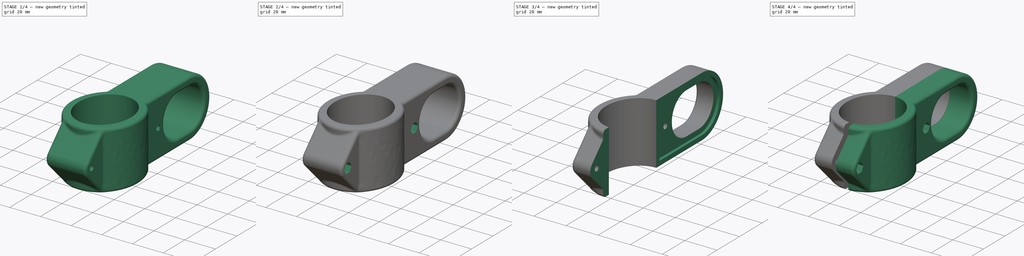
[diagram: build sequence overview — one tinted view per stage of 4, left to right]
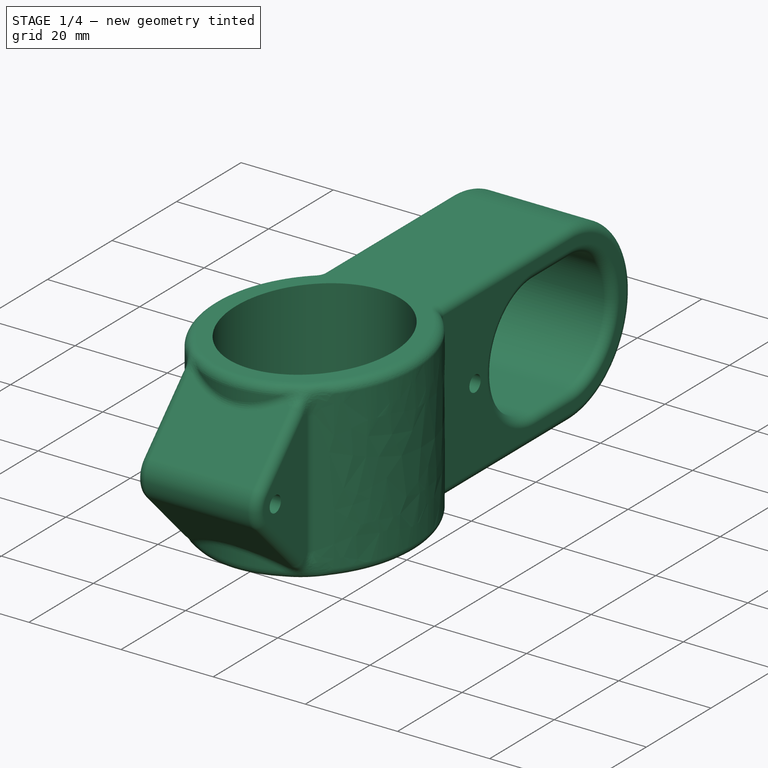
[diagram: stage 1 of 4 — iso view after this stage's code; geometry added in this stage tinted green]
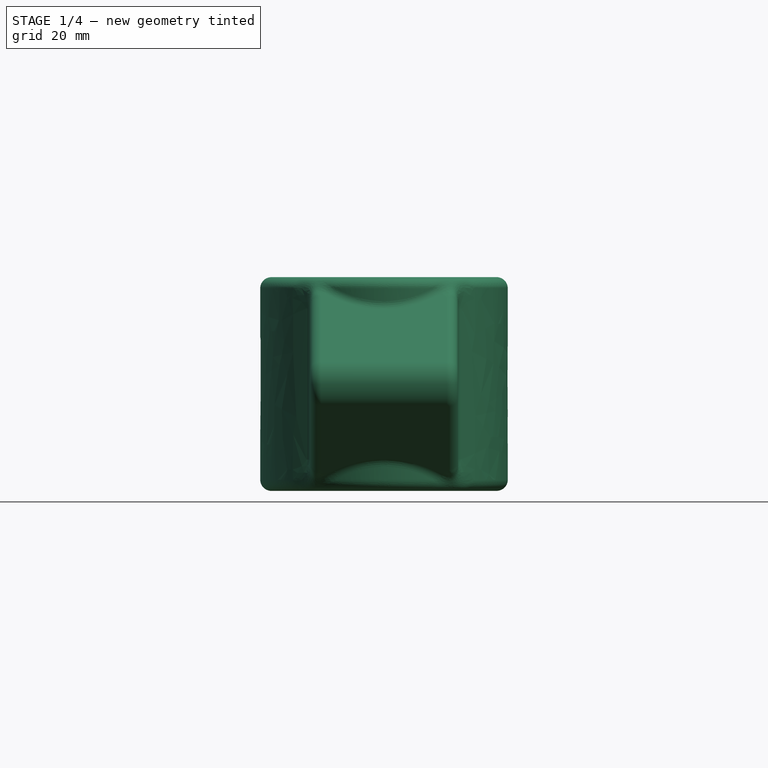
[diagram: stage 1 of 4 — front view after this stage's code; geometry added in this stage tinted green]
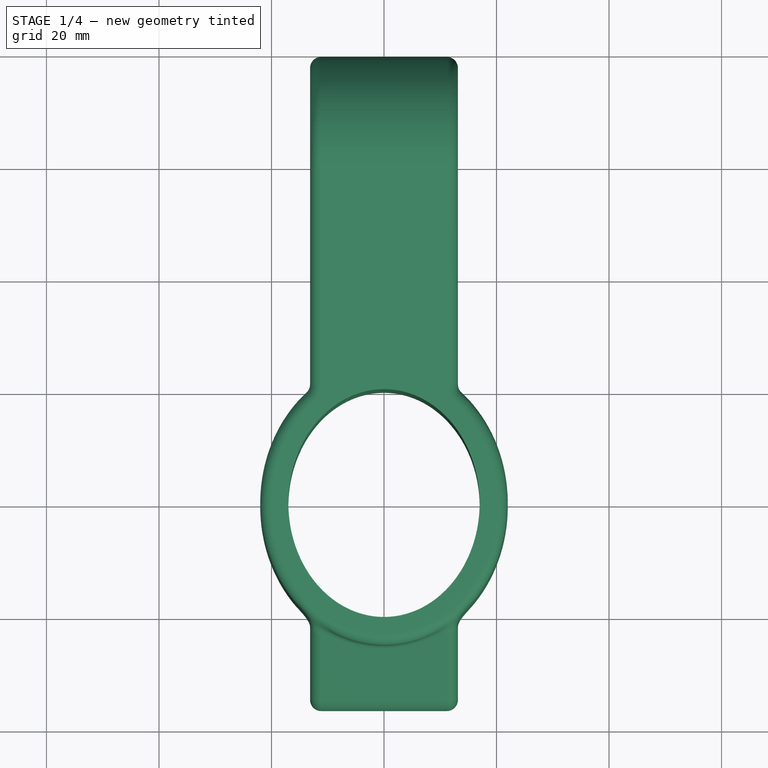
[diagram: stage 1 of 4 — top view after this stage's code; geometry added in this stage tinted green]
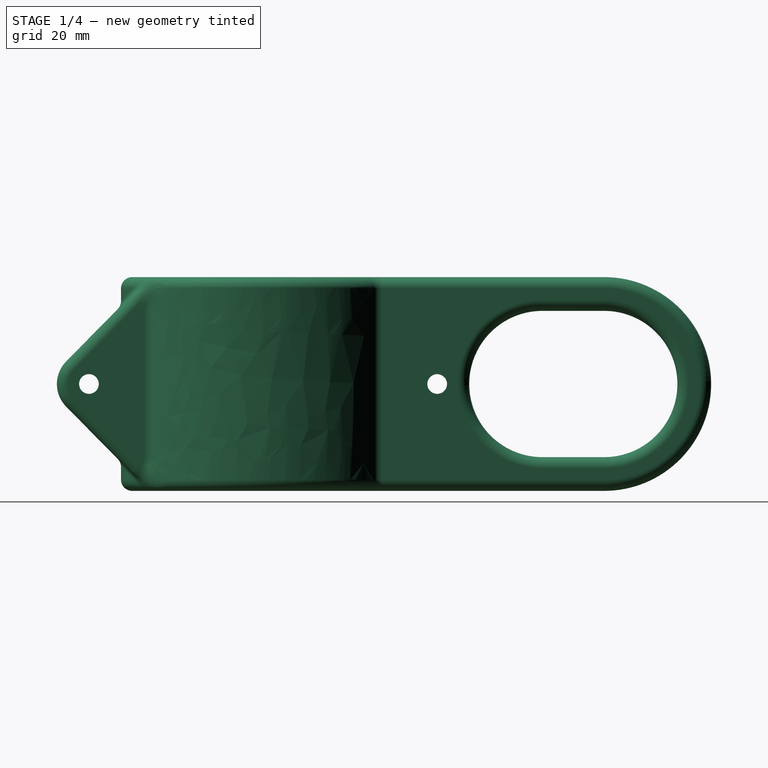
[diagram: stage 1 of 4 — right view after this stage's code; geometry added in this stage tinted green]
FCSTD DOCUMENT  (FreeCAD 0.18.4R)
Label: ScooterLocker
License: All rights reserved
LicenseURL: http://en.wikipedia.org/wiki/All_rights_reserved
objects: Sketcher::SketchObject×10, PartDesign::Pocket×6, PartDesign::ShapeBinder×6, PartDesign::Body×3, PartDesign::Pad×2, PartDesign::Plane×2, PartDesign::FeatureBase×2, Spreadsheet::Sheet×1, PartDesign::Fillet×1, App::Part×1
note: 40 computed .brp shape members not serialized (recipe doc carries the construction recipe); baked Part::Feature solids carry a one-line shape summary decoded from their .brp

FEATURE [Sketcher::SketchObject] Sketch  label="TEMPLATE_XY"
  MapMode = 5
  Support = -> [XY_Plane001]
  sketch-geometry (13):
    g0: Ellipse CenterX=0 CenterY=0 CenterZ=0 NormalX=0 NormalY=0 NormalZ=1 MajorRadius=20.25 MinorRadius=17 AngleXU=-1.5708
    g1: LineSegment StartX=0 StartY=-20.25 StartZ=0 EndX=0 EndY=20.25 EndZ=0
    g2: LineSegment StartX=17 StartY=0 StartZ=0 EndX=-17 EndY=0 EndZ=0
    g3: GeomPoint X=0 Y=-11.0028 Z=0
    g4: GeomPoint X=0 Y=11.0028 Z=0
    g5: Ellipse CenterX=0 CenterY=0 CenterZ=0 NormalX=0 NormalY=0 NormalZ=1 MajorRadius=25.25 MinorRadius=22 AngleXU=-1.5708
    g6: LineSegment StartX=0 StartY=-25.25 StartZ=0 EndX=0 EndY=25.25 EndZ=0
    g7: LineSegment StartX=22 StartY=0 StartZ=0 EndX=-22 EndY=0 EndZ=0
    g8: GeomPoint X=0 Y=-12.392 Z=0
    g9: GeomPoint X=0 Y=12.392 Z=0
    g10: LineSegment [constr] StartX=0 StartY=20.25 StartZ=0 EndX=0 EndY=25.25 EndZ=0
    g11: LineSegment [constr] StartX=-22 StartY=0 StartZ=0 EndX=-17 EndY=0 EndZ=0
    g12: LineSegment StartX=-13.1417 StartY=20.25 StartZ=0 EndX=13.1417 EndY=20.25 EndZ=0
  constraints (21):
    c: InternalAlignment(g1-g4 -> g0) x4
    c: Vertical(g1)
    c: DistanceX(g2,g2) = 34
    c: DistanceY(g1,g1) = 40.5
    c: InternalAlignment(g6-g9 -> g5) x4
    c: Vertical(g6)
    c: Coincident(g5,g0)
    c: Coincident(g10,g1)
    c: Coincident(g10,g6)
    c: DistanceY(g10,g10) = 5  'Thickness'
    c: Coincident(g11,g7)
    c: Coincident(g11,g2)
    c: Equal(g10,g11)
    c: Coincident(g0,g-1)
    c: DistanceX(g7,g7) = 44  'R1'
    c: DistanceY(g6,g6) = 50.5  'R2'
    c: PointOnObject(g12,g5)
    c: PointOnObject(g12,g5)
    c: Horizontal(g12)
    c: Tangent(g0,g12)
    c: DistanceX(g12,g12) = 26.2834  'LockWidth'
FEATURE [Sketcher::SketchObject] Sketch001
  ExternalGeometry = -> [Sketch]
  MapMode = 5
  Support = -> [XY_Plane001]
  sketch-geometry (10):
    g0: Ellipse CenterX=0 CenterY=0 CenterZ=0 NormalX=0 NormalY=0 NormalZ=1 MajorRadius=20.25 MinorRadius=17 AngleXU=-1.5708
    g1: LineSegment [constr] StartX=0 StartY=-20.25 StartZ=0 EndX=0 EndY=20.25 EndZ=0
    g2: LineSegment [constr] StartX=17 StartY=0 StartZ=0 EndX=-17 EndY=0 EndZ=0
    g3: GeomPoint X=0 Y=-11.0028 Z=0
    g4: GeomPoint X=0 Y=11.0028 Z=0
    g5: Ellipse CenterX=0 CenterY=0 CenterZ=0 NormalX=0 NormalY=0 NormalZ=1 MajorRadius=25.25 MinorRadius=22 AngleXU=-1.5708
    g6: LineSegment [constr] StartX=0 StartY=-25.25 StartZ=0 EndX=0 EndY=25.25 EndZ=0
    g7: LineSegment [constr] StartX=22 StartY=0 StartZ=0 EndX=-22 EndY=0 EndZ=0
    g8: GeomPoint X=0 Y=-12.392 Z=0
    g9: GeomPoint X=0 Y=12.392 Z=0
  constraints (8):
    c: InternalAlignment(g1-g4 -> g0) x4
    c: InternalAlignment(g6-g9 -> g5) x4
    c: Coincident(g0,g-1)
    c: Coincident(g2,g-5)
    c: Coincident(g1,g-4)
    c: Coincident(g5,g0)
    c: Coincident(g7,g-8)
    c: Coincident(g6,g-7)
FEATURE [Sketcher::SketchObject] Sketch002  label="TEMPLATE_YZ_1"
  ExternalGeometry = -> [Sketch]
  MapMode = 5
  Placement = pos=(0,0,0) rot=(0.57735,0.57735,0.57735;2.0944rad)
  Support = -> [YZ_Plane001]
  expr: Constraints[28] = Screws.M3Radius
  expr: Constraints[19] = Screws.M3WasherRadius * 2 + 4mm
  sketch-geometry (19):
    g0: ArcOfCircle CenterX=49.65 CenterY=0 CenterZ=0 NormalX=0 NormalY=0 NormalZ=1 AngleXU=0 Radius=13 StartAngle=1.5708 EndAngle=4.71239
    g1: ArcOfCircle CenterX=60.65 CenterY=4e-16 CenterZ=0 NormalX=0 NormalY=0 NormalZ=1 AngleXU=0 Radius=13 StartAngle=4.71239 EndAngle=7.85398
    g2: LineSegment StartX=49.65 StartY=-13 StartZ=0 EndX=60.65 EndY=-13 EndZ=0
    g3: LineSegment StartX=49.65 StartY=13 StartZ=0 EndX=60.65 EndY=13 EndZ=0
    g4: ArcOfCircle CenterX=60.65 CenterY=4e-16 CenterZ=0 NormalX=0 NormalY=0 NormalZ=1 AngleXU=0 Radius=19 StartAngle=4.71239 EndAngle=7.85398
    g5: LineSegment StartX=60.65 StartY=19 StartZ=0 EndX=20.25 EndY=19 EndZ=0
    g6: LineSegment StartX=60.65 StartY=-19 StartZ=0 EndX=20.25 EndY=-19 EndZ=0
    g7: LineSegment StartX=20.25 StartY=19 StartZ=0 EndX=20.25 EndY=-19 EndZ=0
    g8: LineSegment StartX=25.25 StartY=0 StartZ=0 EndX=36.65 EndY=0 EndZ=0
    g9: LineSegment [constr] StartX=60.65 StartY=13 StartZ=0 EndX=60.65 EndY=19 EndZ=0
    g10: LineSegment [constr] StartX=60.65 StartY=-13 StartZ=0 EndX=60.65 EndY=-19 EndZ=0
    g11: Circle CenterX=30.95 CenterY=0 CenterZ=0 NormalX=0 NormalY=0 NormalZ=1 AngleXU=0 Radius=1.75
    g12: LineSegment StartX=-20.25 StartY=19 StartZ=0 EndX=-20.25 EndY=-19 EndZ=0
    g13: LineSegment StartX=-25.25 StartY=0 StartZ=0 EndX=-36.65 EndY=0 EndZ=0
    g14: Circle CenterX=-30.95 CenterY=0 CenterZ=0 NormalX=0 NormalY=0 NormalZ=1 AngleXU=0 Radius=1.75
    g15: ArcOfCircle CenterX=-30.95 CenterY=0 CenterZ=0 NormalX=0 NormalY=0 NormalZ=1 AngleXU=0 Radius=5.7 StartAngle=2.36423 EndAngle=3.91895
    g16: LineSegment StartX=-35.0128 StartY=3.99798 StartZ=0 EndX=-20.25 EndY=19 EndZ=0
    g17: LineSegment StartX=-35.0128 StartY=-3.99798 StartZ=0 EndX=-20.25 EndY=-19 EndZ=0
    g18: LineSegment StartX=73.65 StartY=4e-16 StartZ=0 EndX=79.65 EndY=4e-16 EndZ=0
  constraints (51):
    c: Tangent(g0,g3) = 1.5708
    c: Tangent(g0,g2) = -1.5708
    c: Tangent(g2,g1) = -1.5708
    c: Tangent(g3,g1) = 1.5708
    c: Horizontal(g2)
    c: Equal(g0,g1)
    c: PointOnObject(g0,g-1)
    c: Radius(g0) = 13
    c: DistanceX(g0,g1) = 11
    c: Tangent(g4,g6) = 1.5708
    c: Tangent(g4,g5) = -1.5708
    c: Horizontal(g5)
    c: Horizontal(g6)
    c: Coincident(g7,g5)
    c: Vertical(g7)
    c: Coincident(g7,g6)
    c: Coincident(g8,g-4)
    c: PointOnObject(g8,g0)
    c: Horizontal(g8)
    c: DistanceX(g8,g8) = 11.4
    c: Coincident(g9,g1)
    c: PointOnObject(g9,g5)
    c: Vertical(g9)
    c: Coincident(g10,g1)
    c: Vertical(g10)
    c: Equal(g9,g10)
    c: DistanceY(g9,g9) = 6  'Thickness'
    c: Symmetric(g8,g8,g11)
    c: Radius(g11) = 1.75
    c: DistanceY(g7,g7) = 38  'Height'
    c: Coincident(g4,g1)
    c: Vertical(g12)
    c: PointOnObject(g12,g5)
    c: PointOnObject(g12,g6)
    c: PointOnObject(g-3,g12)
    c: Coincident(g13,g-4)
    c: Horizontal(g13)
    c: Equal(g13,g8)
    c: Equal(g14,g11)
    c: Symmetric(g13,g13,g14)
    c: Coincident(g15,g14)
    c: PointOnObject(g13,g15)
    c: Coincident(g16,g12)
    c: Coincident(g17,g12)
    c: Tangent(g15,g16) = 1.5708
    c: Tangent(g15,g17) = -1.5708
    c: PointOnObject(g18,g1)
    c: Horizontal(g18)
    c: PointOnObject(g1,g18)
    c: PointOnObject(g18,g4)
    c: PointOnObject(g-3,g7)
FEATURE [Spreadsheet::Sheet] Spreadsheet001  label="Screws"
  cells = B2=M3Radius; C2(M3Radius)==1.75mm; B3=M3HeadRadius; C3(M3HeadRadius)==3mm; B4=M3HeadHeight; C4(M3HeadHeight)==2.95mm; B5=M3WasherRadius; C5(M3WasherRadius)==3.7mm; B6=M3WasherHeight; C6(M3WasherHeight)==0.5mm; B7=M3NutRadius; C7(M3NutRadius)==3.4mm; B8=M3NutHeight; C8(M3NutHeight)==2.75mm; B9=M3NylocNutHeight; C9(M3NylocNutHeight)==4.1mm; B10=M3NutDuctWidth; C10(M3NutDuctWidth)==5.85mm; B11=M4Radius; C11(M4Radius)==2.2mm; B12=M4HeadRadius; C12(M4HeadRadius)==3.75mm; B13=M4HeadHeight; C13(M4HeadHeight)==4mm; B14=M4WasherRadius; C14(M4WasherRadius)==4.7mm; B15=M4NutRadius; C15(M4NutRadius)==4.25mm; B16=M4NutHeight; C16(M4NutHeight)==3.3mm; B17=M4NutDuctWidth; C17(M4NutDuctWidth)==7.1mm; B18=M5Radius; C18(M5Radius)==2.66mm; B19=M5HeadRadius; C19(M5HeadRadius)==4.5mm; B20=M5HeadHeight; C20(M5HeadHeight)==5mm; B21=M5NutRadius; C21(M5NutRadius)==4.75mm; B22=M5NutHeight; C22(M5NutHeight)==4mm; B24=M6Radius; C24(M6Radius)==3.15mm; B25=M6HeadRadius; C25(M6HeadRadius)==5.5mm; B32=
FEATURE [PartDesign::Pad] Pad
  Length = 38
  Length2 = 100
  Midplane = true
  Profile = -> Sketch001
  Type = 0
  expr: Length = Sketch002.Constraints.Height
FEATURE [Sketcher::SketchObject] Sketch004
  ExternalGeometry = -> [Sketch002]
  MapMode = 5
  Placement = pos=(0,0,0) rot=(0.57735,0.57735,0.57735;2.0944rad)
  Support = -> [YZ_Plane001]
  sketch-geometry (14):
    g0: ArcOfCircle CenterX=60.65 CenterY=-8e-16 CenterZ=0 NormalX=0 NormalY=0 NormalZ=1 AngleXU=0 Radius=13 StartAngle=4.71239 EndAngle=7.85398
    g1: ArcOfCircle CenterX=49.65 CenterY=4e-16 CenterZ=0 NormalX=0 NormalY=0 NormalZ=1 AngleXU=0 Radius=13 StartAngle=1.57079 EndAngle=4.71239
    g2: LineSegment StartX=49.65 StartY=13 StartZ=0 EndX=60.65 EndY=13 EndZ=0
    g3: LineSegment StartX=49.65 StartY=-13 StartZ=0 EndX=60.65 EndY=-13 EndZ=0
    g4: ArcOfCircle CenterX=60.6499 CenterY=-7e-16 CenterZ=0 NormalX=0 NormalY=0 NormalZ=1 AngleXU=0 Radius=19 StartAngle=4.71239 EndAngle=7.85398
    g5: LineSegment StartX=60.65 StartY=19 StartZ=0 EndX=20.25 EndY=19 EndZ=0
    g6: LineSegment StartX=20.25 StartY=19 StartZ=0 EndX=20.25 EndY=-19 EndZ=0
    g7: LineSegment StartX=20.25 StartY=-19 StartZ=0 EndX=60.65 EndY=-19 EndZ=0
    g8: Circle CenterX=30.95 CenterY=3.9e-15 CenterZ=0 NormalX=0 NormalY=0 NormalZ=1 AngleXU=0 Radius=1.75
    g9: LineSegment StartX=-35.0128 StartY=-3.99798 StartZ=0 EndX=-20.25 EndY=-19 EndZ=0
    g10: LineSegment StartX=-20.25 StartY=-19 StartZ=0 EndX=-20.25 EndY=19 EndZ=0
    g11: LineSegment StartX=-20.25 StartY=19 StartZ=0 EndX=-35.0128 EndY=3.99798 EndZ=0
    g12: ArcOfCircle CenterX=-30.95 CenterY=-2e-16 CenterZ=0 NormalX=0 NormalY=0 NormalZ=1 AngleXU=0 Radius=5.7 StartAngle=2.36423 EndAngle=3.91895
    g13: Circle CenterX=-30.95 CenterY=-2e-16 CenterZ=0 NormalX=0 NormalY=0 NormalZ=1 AngleXU=0 Radius=1.75
  constraints (32):
    c: Coincident(g0,g-7)
    c: Coincident(g0,g-7)
    c: Equal(g0,g-7)
    c: Coincident(g1,g-8)
    c: Coincident(g1,g-8)
    c: Equal(g1,g-8)
    c: Coincident(g2,g1)
    c: Coincident(g2,g0)
    c: Coincident(g3,g1)
    c: Coincident(g3,g0)
    c: Coincident(g4,g-6)
    c: Coincident(g4,g-6)
    c: Equal(g4,g-6)
    c: Coincident(g5,g4)
    c: Coincident(g5,g-3)
    c: Coincident(g6,g5)
    c: Coincident(g6,g-4)
    c: Coincident(g7,g6)
    c: Coincident(g7,g4)
    c: Coincident(g8,g-5)
    c: Equal(g8,g-5)
    c: Coincident(g-10,g9)
    c: Coincident(g9,g-9)
    c: Coincident(g9,g10)
    c: Coincident(g10,g-9)
    c: Coincident(g10,g11)
    c: Coincident(g11,g-10)
    c: Coincident(g12,g11)
    c: Coincident(g12,g9)
    c: Equal(g12,g-10)
    c: Coincident(g13,g12)
    c: Equal(g13,g-11)
FEATURE [PartDesign::Pad] Pad001
  BaseFeature = -> Pad
  Length = 26.2834
  Length2 = 100
  Midplane = true
  Profile = -> Sketch004
  Refine = true
  Type = 0
  expr: Length = TEMPLATE_XY.Constraints.LockWidth
FEATURE [PartDesign::Plane] DatumPlane
  Length = 129.412
  MapMode = 5
  Placement = pos=(13.1417,-2.9e-15,2.9e-15) rot=(0.57735,0.57735,0.57735;2.0944rad)
  ResizeMode = 0
  Support = -> [Pad001]
  Width = 51.2858
FEATURE [PartDesign::Plane] DatumPlane001
  Length = 129.412
  MapMode = 5
  Placement = pos=(-13.1417,2.9e-15,-2.9e-15) rot=(-0.57735,0.57735,0.57735;4.18879rad)
  ResizeMode = 0
  Support = -> [Pad001]
  Width = 51.2858
FEATURE [Sketcher::SketchObject] Sketch005
  ExternalGeometry = -> [Sketch002]
  MapMode = 5
  Placement = pos=(13.1417,-2.9e-15,2.9e-15) rot=(0.57735,0.57735,0.57735;2.0944rad)
  Support = -> [DatumPlane]
  expr: Constraints[37] = Screws.M3NutRadius
  sketch-geometry (14):
    g0: LineSegment StartX=-29.25 StartY=2.94449 StartZ=0 EndX=-32.65 EndY=2.94449 EndZ=0
    g1: LineSegment StartX=-32.65 StartY=2.94449 StartZ=0 EndX=-34.35 EndY=0 EndZ=0
    g2: LineSegment StartX=-34.35 StartY=0 StartZ=0 EndX=-32.65 EndY=-2.94449 EndZ=0
    g3: LineSegment StartX=-32.65 StartY=-2.94449 StartZ=0 EndX=-29.25 EndY=-2.94449 EndZ=0
    g4: LineSegment StartX=-29.25 StartY=-2.94449 StartZ=0 EndX=-27.55 EndY=0 EndZ=0
    g5: LineSegment StartX=-27.55 StartY=1e-16 StartZ=0 EndX=-29.25 EndY=2.94449 EndZ=0
    g6: Circle [constr] CenterX=-30.95 CenterY=-1e-16 CenterZ=0 NormalX=0 NormalY=0 NormalZ=1 AngleXU=0 Radius=3.4
    g7: LineSegment StartX=32.65 StartY=2.94449 StartZ=0 EndX=29.25 EndY=2.94449 EndZ=0
    g8: LineSegment StartX=29.25 StartY=2.94449 StartZ=0 EndX=27.55 EndY=4.4e-15 EndZ=0
    g9: LineSegment StartX=27.55 StartY=4.4e-15 StartZ=0 EndX=29.25 EndY=-2.94449 EndZ=0
    g10: LineSegment StartX=29.25 StartY=-2.94449 StartZ=0 EndX=32.65 EndY=-2.94449 EndZ=0
    g11: LineSegment StartX=32.65 StartY=-2.94449 StartZ=0 EndX=34.35 EndY=-3.6e-15 EndZ=0
    g12: LineSegment StartX=34.35 StartY=-3.6e-15 StartZ=0 EndX=32.65 EndY=2.94449 EndZ=0
    g13: Circle [constr] CenterX=30.95 CenterY=1e-16 CenterZ=0 NormalX=0 NormalY=0 NormalZ=1 AngleXU=0 Radius=3.4
  constraints (32):
    c: Coincident(g0,g1)
    c: Coincident(g1,g2)
    c: Coincident(g2,g3)
    c: Coincident(g3,g4)
    c: Coincident(g4,g5)
    c: Coincident(g5,g0)
    c: Equal(g0, g1-g5) x5
    c: PointOnObject(g0,g6)
    c: PointOnObject(g1,g6)
    c: PointOnObject(g2,g6)
    c: PointOnObject(g3,g6)
    c: PointOnObject(g4,g6)
    c: PointOnObject(g5,g6)
    c: Coincident(g7,g8)
    c: Coincident(g8,g9)
    c: Coincident(g9,g10)
    c: Coincident(g10,g11)
    c: Coincident(g11,g12)
    c: Coincident(g12,g7)
    c: Equal(g7, g8-g12) x5
    c: PointOnObject(g7,g13)
    c: PointOnObject(g8,g13)
    c: PointOnObject(g9,g13)
    c: PointOnObject(g10,g13)
    c: PointOnObject(g11,g13)
    c: PointOnObject(g12,g13)
    c: Horizontal(g7)
    c: Horizontal(g0)
    c: Equal(g6,g13)
    c: Radius(g13) = 3.4
    c: Coincident(g6,g-3)
    c: Coincident(g-4,g13)
FEATURE [PartDesign::Fillet] Fillet
  Base = -> Pad001 [Edge37,Edge35,Edge27,Edge29,Edge36,Edge21,Edge22,Edge13,Edge6,Edge1,Edge43,Edge23,Edge20,Edge4,Edge2,Edge28,Edge18,Edge19,Edge9,Edge24,Edge41,Edge33]
  BaseFeature = -> Pad001
  Radius = 1.99
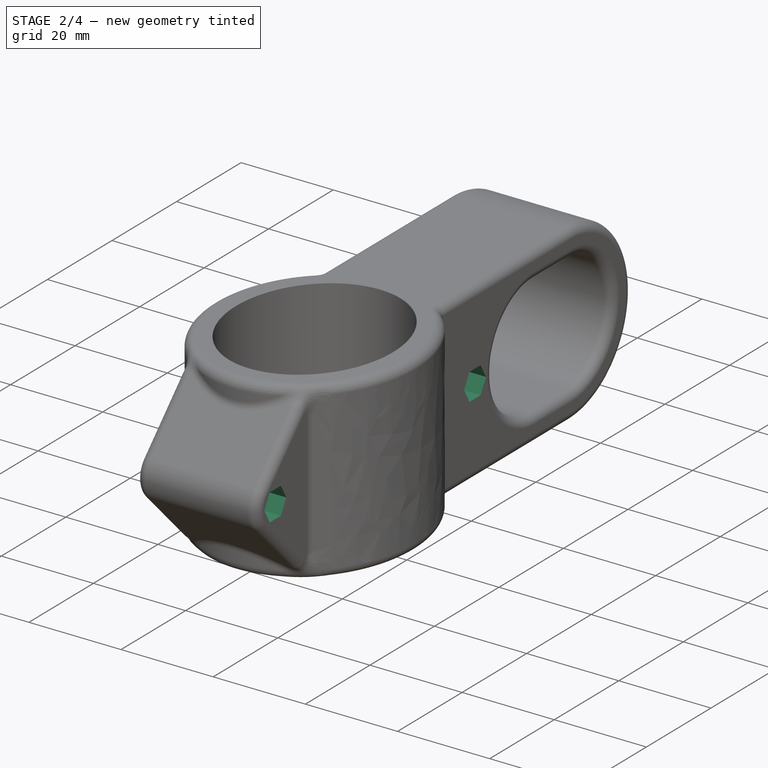
[diagram: stage 2 of 4 — iso view after this stage's code; geometry added in this stage tinted green]
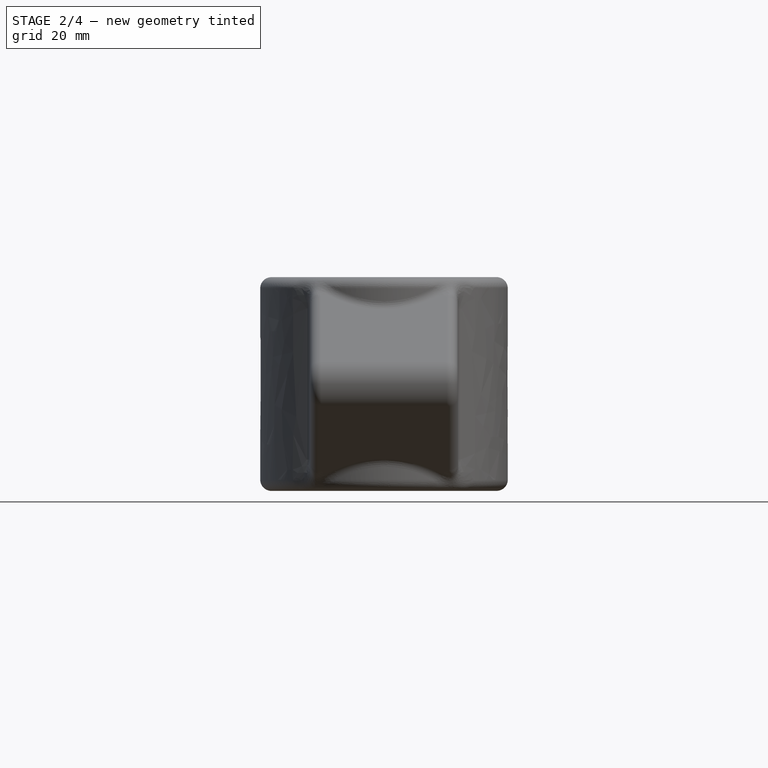
[diagram: stage 2 of 4 — front view after this stage's code; geometry added in this stage tinted green]
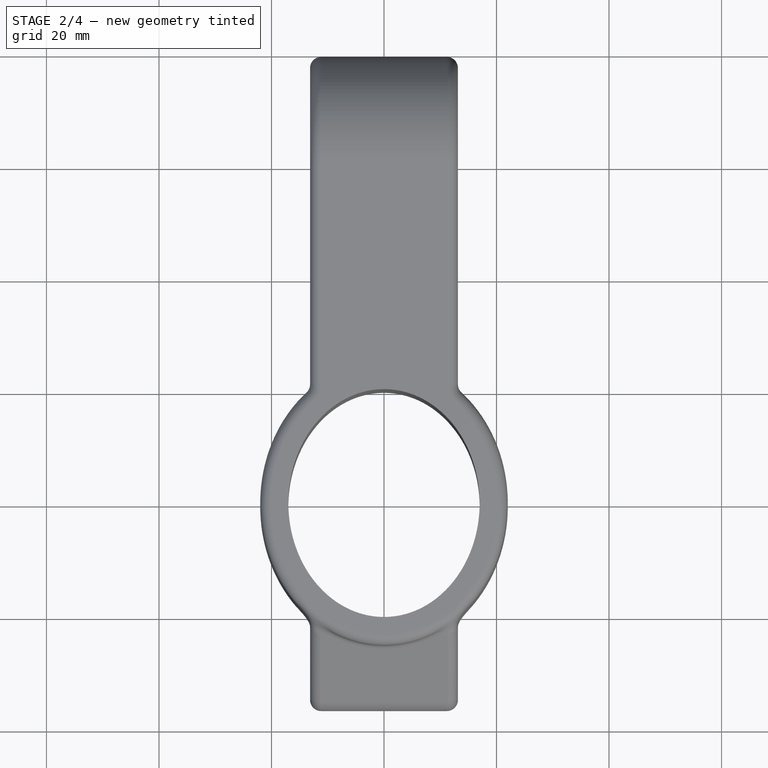
[diagram: stage 2 of 4 — top view after this stage's code; geometry added in this stage tinted green]
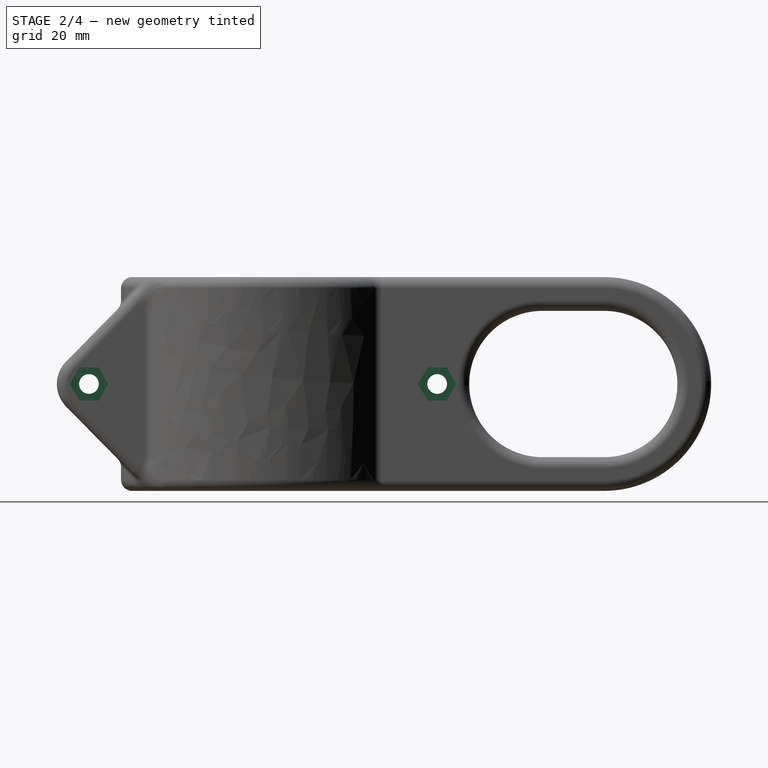
[diagram: stage 2 of 4 — right view after this stage's code; geometry added in this stage tinted green]
FEATURE [PartDesign::Pocket] Pocket
  BaseFeature = -> Fillet
  Length = 6.1
  Length2 = 100
  Profile = -> Sketch005
  Type = 0
  expr: Length = Screws.M3NylocNutHeight + 2mm
FEATURE [Sketcher::SketchObject] Sketch006
  ExternalGeometry = -> [Sketch002]
  MapMode = 5
  Placement = pos=(-13.1417,2.9e-15,-2.9e-15) rot=(-0.57735,0.57735,0.57735;4.18879rad)
  Support = -> [DatumPlane001]
  expr: Constraints[1] = Screws.M3WasherRadius
  sketch-geometry (2):
    g0: Circle CenterX=-30.95 CenterY=0 CenterZ=0 NormalX=0 NormalY=0 NormalZ=1 AngleXU=0 Radius=3.7
    g1: Circle CenterX=30.95 CenterY=0 CenterZ=0 NormalX=0 NormalY=0 NormalZ=1 AngleXU=0 Radius=3.7
  constraints (4):
    c: Equal(g1,g0)
    c: Radius(g0) = 3.7
    c: Coincident(g0,g-3)
    c: Coincident(g-4,g1)
FEATURE [PartDesign::Pocket] Pocket001
  BaseFeature = -> Pocket
  Length = 5.45
  Length2 = 100
  Profile = -> Sketch006
  Type = 0
  expr: Length = Screws.M3HeadHeight + Screws.M3WasherHeight + 2mm
FEATURE [PartDesign::FeatureBase] Clone001
  BaseFeature = -> Body
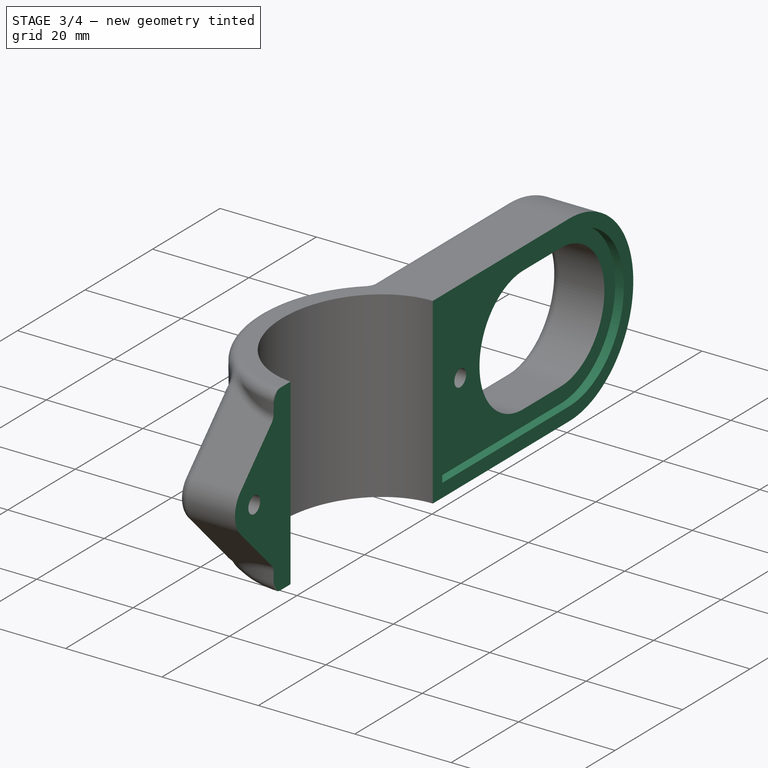
[diagram: stage 3 of 4 — iso view after this stage's code; geometry added in this stage tinted green]
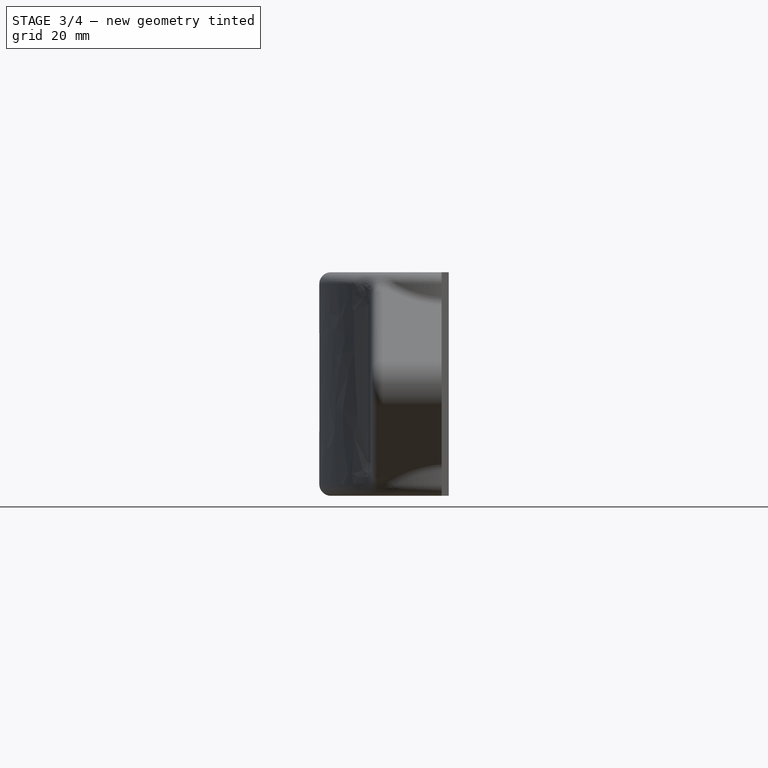
[diagram: stage 3 of 4 — front view after this stage's code; geometry added in this stage tinted green]
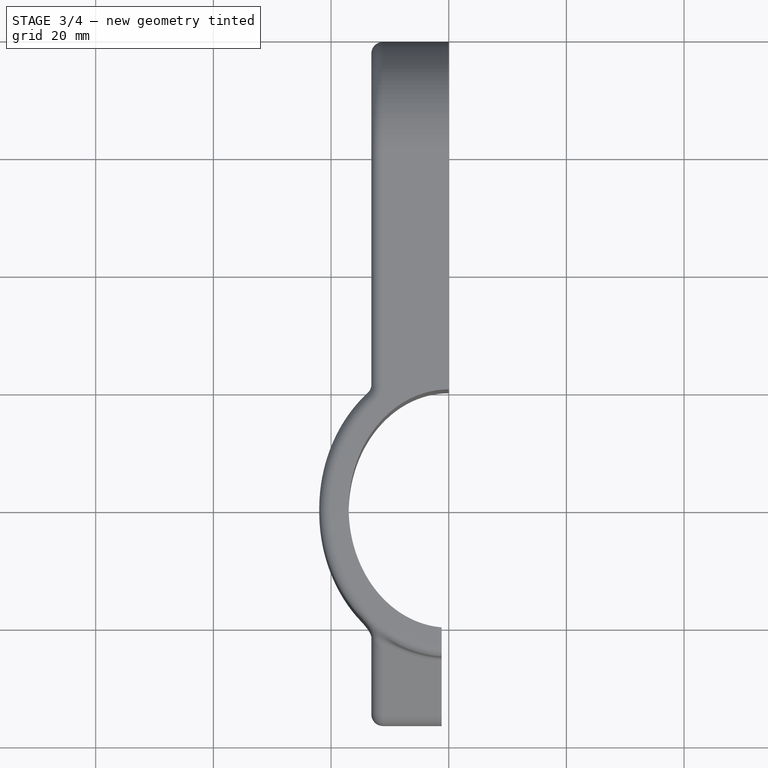
[diagram: stage 3 of 4 — top view after this stage's code; geometry added in this stage tinted green]
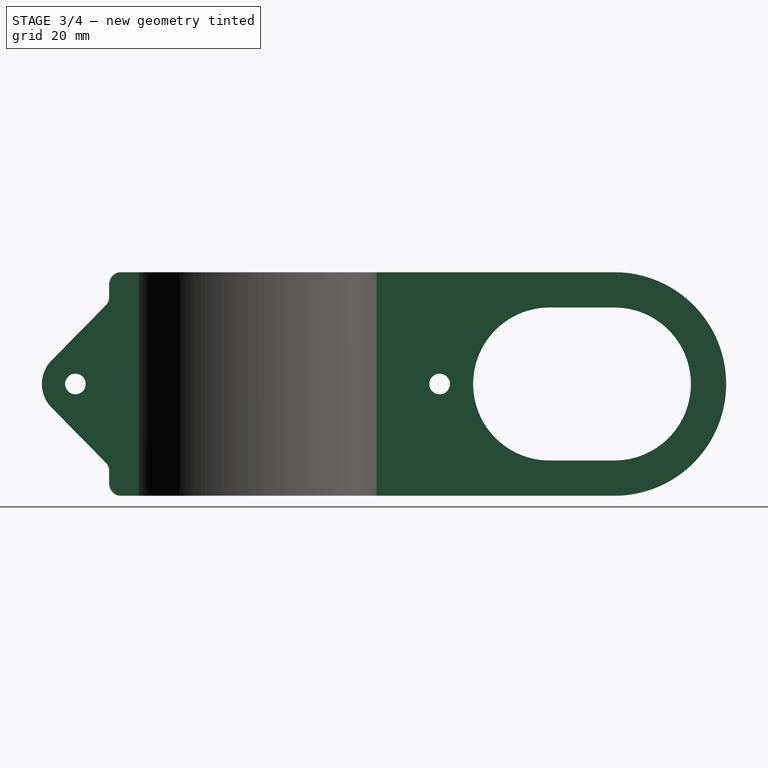
[diagram: stage 3 of 4 — right view after this stage's code; geometry added in this stage tinted green]
FEATURE [PartDesign::ShapeBinder] ShapeBinder002
  Support = -> [Sketch]
  TraceSupport = false
FEATURE [PartDesign::ShapeBinder] ShapeBinder003
  Placement = pos=(0,0,0) rot=(0.57735,0.57735,0.57735;2.0944rad)
  Support = -> [Sketch002]
  TraceSupport = false
FEATURE [Sketcher::SketchObject] Sketch008
  ExternalGeometry = -> [ShapeBinder003,ShapeBinder002]
  MapMode = 5
  Support = -> [XY_Plane003]
  sketch-geometry (6):
    g0: LineSegment StartX=-1.2 StartY=-36.65 StartZ=0 EndX=22 EndY=-36.65 EndZ=0
    g1: LineSegment StartX=22 StartY=-36.65 StartZ=0 EndX=22 EndY=79.65 EndZ=0
    g2: LineSegment StartX=22 StartY=79.65 StartZ=0 EndX=0 EndY=79.65 EndZ=0
    g3: LineSegment StartX=0 StartY=79.65 StartZ=0 EndX=0 EndY=0 EndZ=0
    g4: LineSegment StartX=0 StartY=0 StartZ=0 EndX=-1.2 EndY=0 EndZ=0
    g5: LineSegment StartX=-1.2 StartY=0 StartZ=0 EndX=-1.2 EndY=-36.65 EndZ=0
  constraints (16):
    c: Horizontal(g0)
    c: Coincident(g1,g0)
    c: Vertical(g1)
    c: Coincident(g2,g1)
    c: Horizontal(g2)
    c: PointOnObject(g-5,g1)
    c: PointOnObject(g-4,g0)
    c: DistanceX(g0,g-4) = 1.2
    c: Horizontal(g4)
    c: Coincident(g5,g4)
    c: Coincident(g5,g0)
    c: Vertical(g5)
    c: Coincident(g3,g4)
    c: Coincident(g3,g2)
    c: Coincident(g3,g-1)
    c: Coincident(g2,g-3)
FEATURE [PartDesign::Pocket] Pocket003
  BaseFeature = -> Clone001
  Length = 5
  Length2 = 100
  Midplane = true
  Profile = -> Sketch008
  Type = 1
FEATURE [PartDesign::Body] Body001  label="Right"
  BaseFeature = -> Body
  Group = -> [Clone,ShapeBinder,ShapeBinder001,ShapeBinder004,Sketch007,Pocket002,Sketch009,Pocket004]
  Origin = -> Origin002
  Placement = pos=(2,0,0) rot=(0,0,1;0rad)
  Tip = -> Pocket004
FEATURE [PartDesign::ShapeBinder] ShapeBinder005
  Placement = pos=(0,0,0) rot=(0.57735,0.57735,0.57735;2.0944rad)
  Support = -> [Sketch004]
  TraceSupport = false
FEATURE [Sketcher::SketchObject] Sketch010
  ExternalGeometry = -> [ShapeBinder005]
  MapMode = 5
  Placement = pos=(0,0,0) rot=(0.57735,0.57735,0.57735;2.0944rad)
  Support = -> [YZ_Plane003]
  expr: Constraints[17] = Sketch009.Constraints.GrooveIn - 0.2mm
  sketch-geometry (7):
    g0: LineSegment StartX=60.65 StartY=16.2 StartZ=0 EndX=23.05 EndY=16.2 EndZ=0
    g1: LineSegment StartX=23.05 StartY=16.2 StartZ=0 EndX=23.05 EndY=-16.2 EndZ=0
    g2: LineSegment StartX=23.05 StartY=-16.2 StartZ=0 EndX=60.65 EndY=-16.2 EndZ=0
    g3: ArcOfCircle CenterX=60.6499 CenterY=6e-15 CenterZ=0 NormalX=0 NormalY=0 NormalZ=1 AngleXU=0 Radius=16.2 StartAngle=4.71239 EndAngle=7.85398
    g4: LineSegment [constr] StartX=60.65 StartY=19 StartZ=0 EndX=60.65 EndY=16.2 EndZ=0
    g5: LineSegment [constr] StartX=60.65 StartY=-16.2 StartZ=0 EndX=60.65 EndY=-19 EndZ=0
    g6: LineSegment [constr] StartX=23.05 StartY=16.2 StartZ=0 EndX=20.25 EndY=16.2 EndZ=0
  constraints (19):
    c: Horizontal(g0)
    c: Coincident(g0,g1)
    c: Vertical(g1)
    c: Coincident(g1,g2)
    c: Horizontal(g2)
    c: Coincident(g3,g-3)
    c: Coincident(g3,g0)
    c: Coincident(g3,g2)
    c: Coincident(g4,g-3)
    c: Coincident(g4,g0)
    c: Vertical(g4)
    c: Coincident(g5,g2)
    c: Coincident(g5,g-3)
    c: Vertical(g5)
    c: Coincident(g6,g0)
    c: PointOnObject(g6,g-4)
    c: Horizontal(g6)
    c: DistanceX(g6,g6) = 2.8
    c: Equal(g4,g6)
FEATURE [PartDesign::Pocket] Pocket005
  BaseFeature = -> Pocket003
  Length = 1.8
  Length2 = 100
  Profile = -> Sketch010
  Type = 0
  expr: Length = Sketch007.Constraints.Gap + 0.2mm
FEATURE [PartDesign::Body] Body002  label="Left"
  BaseFeature = -> Body
  Group = -> [Clone001,ShapeBinder002,ShapeBinder003,ShapeBinder005,Sketch008,Pocket003,Sketch010,Pocket005]
  Origin = -> Origin003
  Placement = pos=(-2,0,0) rot=(0,0,1;0rad)
  Tip = -> Pocket005
FEATURE [App::Part] Part
  Group = -> [Body,Body002,Body001]
  Origin = -> Origin
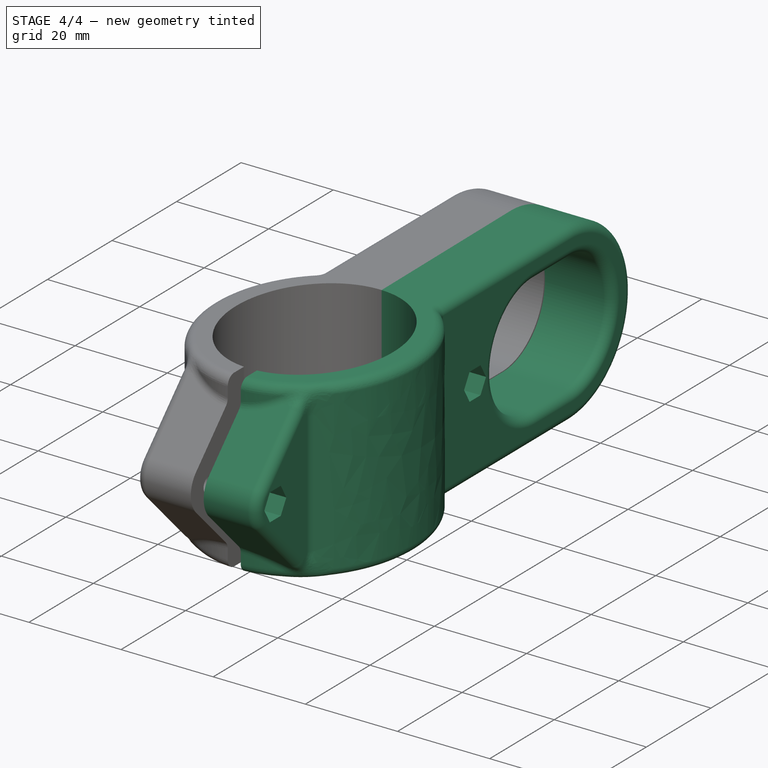
[diagram: stage 4 of 4 — iso view after this stage's code; geometry added in this stage tinted green]
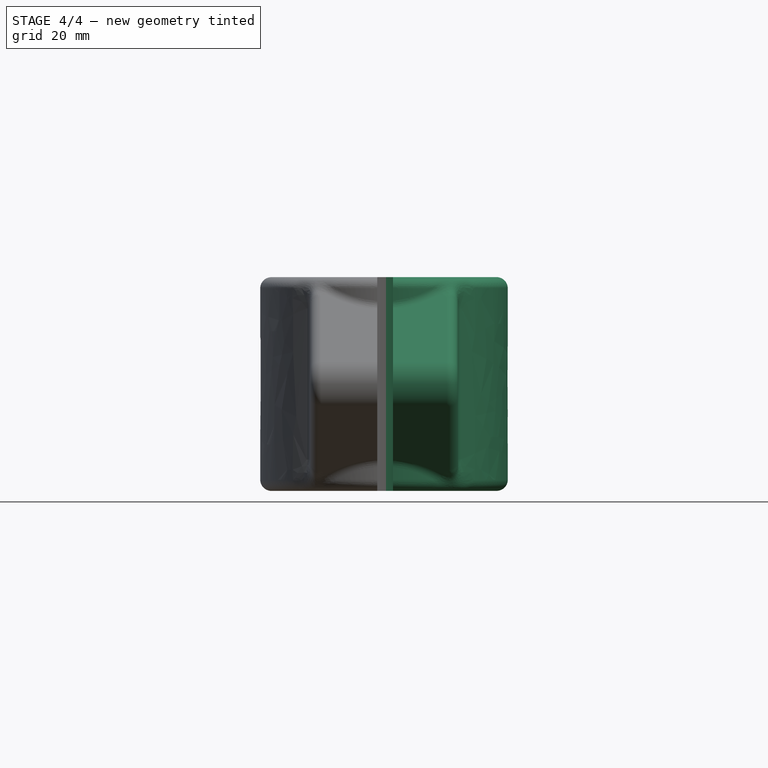
[diagram: stage 4 of 4 — front view after this stage's code; geometry added in this stage tinted green]
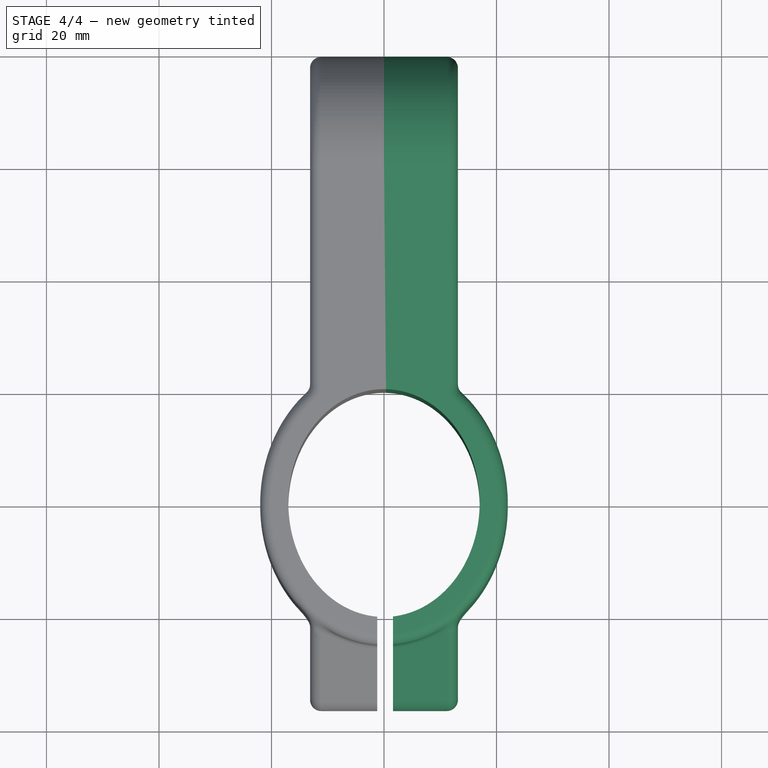
[diagram: stage 4 of 4 — top view after this stage's code; geometry added in this stage tinted green]
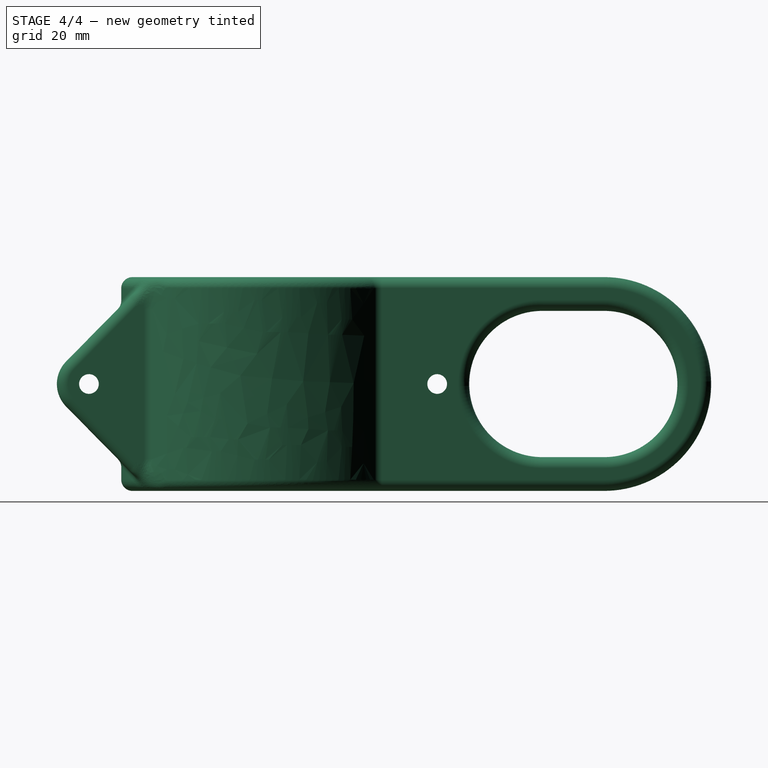
[diagram: stage 4 of 4 — right view after this stage's code; geometry added in this stage tinted green]
FEATURE [PartDesign::Body] Body
  Group = -> [Sketch,Sketch002,Sketch001,Pad,Sketch004,Pad001,DatumPlane,DatumPlane001,Fillet,Sketch005,Pocket,Sketch006,Pocket001]
  Origin = -> Origin001
  Tip = -> Pocket001
FEATURE [PartDesign::FeatureBase] Clone
  BaseFeature = -> Body
FEATURE [PartDesign::ShapeBinder] ShapeBinder
  Support = -> [Sketch]
  TraceSupport = false
FEATURE [PartDesign::ShapeBinder] ShapeBinder001
  Placement = pos=(0,0,0) rot=(0.57735,0.57735,0.57735;2.0944rad)
  Support = -> [Sketch002]
  TraceSupport = false
FEATURE [Sketcher::SketchObject] Sketch007
  ExternalGeometry = -> [ShapeBinder001,ShapeBinder]
  MapMode = 5
  Support = -> [XY_Plane002]
  sketch-geometry (6):
    g0: LineSegment StartX=-22 StartY=-36.65 StartZ=0 EndX=1.6 EndY=-36.65 EndZ=0
    g1: LineSegment StartX=1.6 StartY=-36.65 StartZ=0 EndX=1.6 EndY=0 EndZ=0
    g2: LineSegment StartX=1.6 StartY=0 StartZ=0 EndX=-1.6 EndY=0 EndZ=0
    g3: LineSegment StartX=-1.6 StartY=0 StartZ=0 EndX=-1.6 EndY=79.65 EndZ=0
    g4: LineSegment StartX=-1.6 StartY=79.65 StartZ=0 EndX=-22 EndY=79.65 EndZ=0
    g5: LineSegment StartX=-22 StartY=79.65 StartZ=0 EndX=-22 EndY=-36.65 EndZ=0
  constraints (17):
    c: Horizontal(g0)
    c: Coincident(g1,g0)
    c: PointOnObject(g1,g-1)
    c: Vertical(g1)
    c: Coincident(g2,g1)
    c: Horizontal(g4)
    c: Coincident(g5,g4)
    c: Vertical(g5)
    c: PointOnObject(g-6,g5)
    c: Coincident(g0,g5)
    c: PointOnObject(g-3,g0)
    c: DistanceX(g-3,g0) = 1.6  'Gap'
    c: Coincident(g2,g3)
    c: Symmetric(g1,g2,g-1)
    c: Vertical(g3)
    c: Coincident(g4,g3)
    c: PointOnObject(g-4,g4)
FEATURE [PartDesign::Pocket] Pocket002
  BaseFeature = -> Clone
  Length = 5
  Length2 = 100
  Midplane = true
  Profile = -> Sketch007
  Type = 1
FEATURE [PartDesign::ShapeBinder] ShapeBinder004
  Placement = pos=(0,0,0) rot=(0.57735,0.57735,0.57735;2.0944rad)
  Support = -> [Sketch004]
  TraceSupport = false
FEATURE [Sketcher::SketchObject] Sketch009
  ExternalGeometry = -> [ShapeBinder004]
  MapMode = 5
  Placement = pos=(0,0,0) rot=(0.57735,0.57735,0.57735;2.0944rad)
  Support = -> [YZ_Plane002]
  expr: Constraints.GrooveIn = TEMPLATE_YZ_1.Constraints.Thickness / 2
  sketch-geometry (11):
    g0: ArcOfCircle CenterX=60.6499 CenterY=6e-15 CenterZ=0 NormalX=0 NormalY=0 NormalZ=1 AngleXU=0 Radius=19 StartAngle=4.71239 EndAngle=7.85398
    g1: ArcOfCircle CenterX=60.6499 CenterY=6e-15 CenterZ=0 NormalX=0 NormalY=0 NormalZ=1 AngleXU=0 Radius=16 StartAngle=4.71239 EndAngle=7.85398
    g2: LineSegment [constr] StartX=60.65 StartY=19 StartZ=0 EndX=60.65 EndY=16 EndZ=0
    g3: LineSegment [constr] StartX=60.65 StartY=-16 StartZ=0 EndX=60.65 EndY=-19 EndZ=0
    g4: LineSegment StartX=60.65 StartY=19 StartZ=0 EndX=0 EndY=19 EndZ=0
    g5: LineSegment StartX=60.65 StartY=-19 StartZ=0 EndX=7.1e-15 EndY=-19 EndZ=0
    g6: LineSegment StartX=0 StartY=19 StartZ=0 EndX=1e-14 EndY=-19 EndZ=0
    g7: LineSegment StartX=60.65 StartY=16 StartZ=0 EndX=23.25 EndY=16 EndZ=0
    g8: LineSegment StartX=23.25 StartY=16 StartZ=0 EndX=23.25 EndY=-16 EndZ=0
    g9: LineSegment StartX=23.25 StartY=-16 StartZ=0 EndX=60.65 EndY=-16 EndZ=0
    g10: LineSegment [constr] StartX=23.25 StartY=16 StartZ=0 EndX=20.25 EndY=16 EndZ=0
  constraints (29):
    c: Coincident(g0,g-3)
    c: Coincident(g0,g-3)
    c: Coincident(g0,g-3)
    c: Coincident(g1,g0)
    c: Coincident(g2,g0)
    c: Coincident(g2,g1)
    c: Coincident(g3,g1)
    c: Coincident(g3,g0)
    c: Vertical(g3)
    c: Vertical(g2)
    c: Coincident(g4,g0)
    c: Horizontal(g4)
    c: Coincident(g5,g0)
    c: Horizontal(g5)
    c: Coincident(g6,g4)
    c: Coincident(g6,g5)
    c: Coincident(g7,g1)
    c: Horizontal(g7)
    c: Coincident(g8,g7)
    c: Vertical(g8)
    c: Coincident(g9,g8)
    c: Coincident(g9,g1)
    c: Horizontal(g9)
    c: Coincident(g10,g7)
    c: PointOnObject(g10,g-4)
    c: Horizontal(g10)
    c: Equal(g10,g2)
    c: DistanceX(g-4,g7) = 3  'GrooveIn'
    c: Symmetric(g-5,g-4,g6)
FEATURE [PartDesign::Pocket] Pocket004
  BaseFeature = -> Pocket002
  Length = 5
  Length2 = 100
  Profile = -> Sketch009
  Type = 0
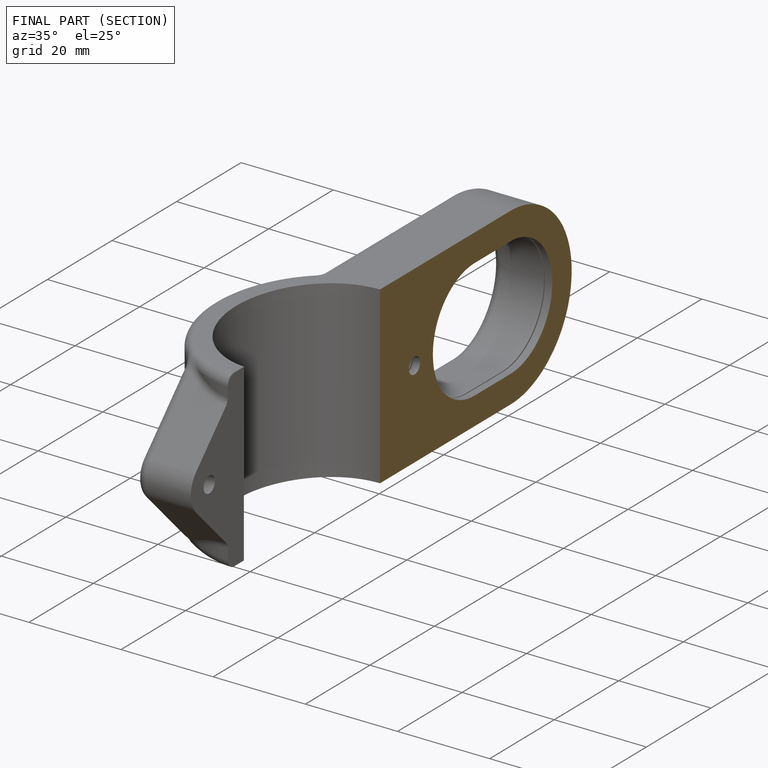
[diagram: finished part — half-section view (interior)]
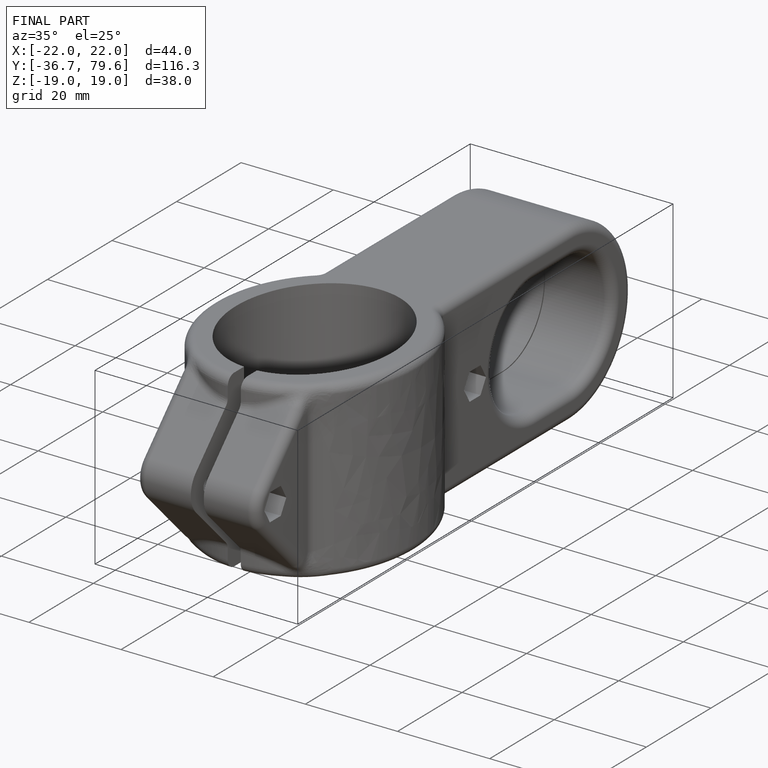
[diagram: finished part — iso view with bounding-box wireframe]
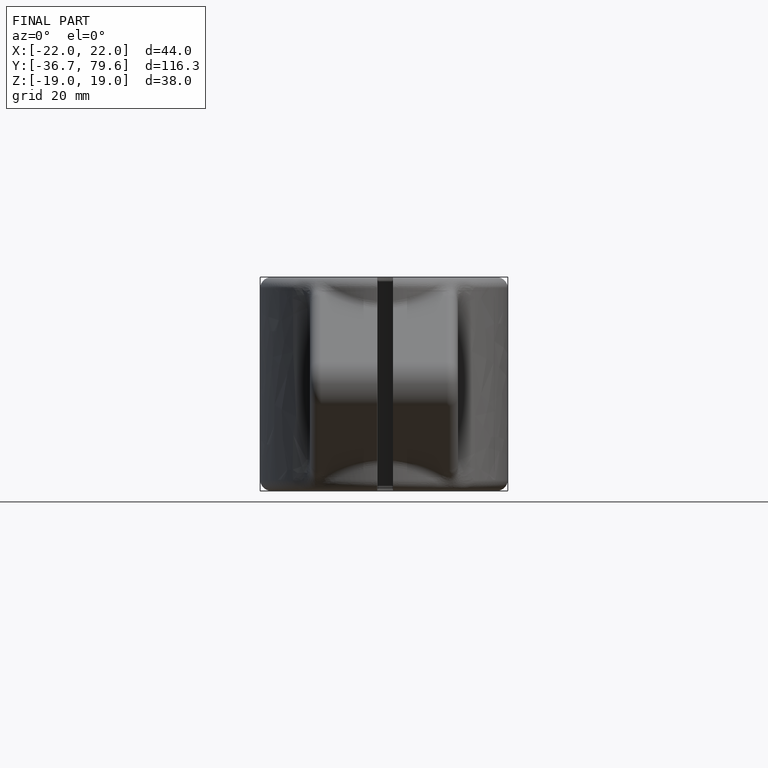
[diagram: finished part — front view with bounding-box wireframe]
